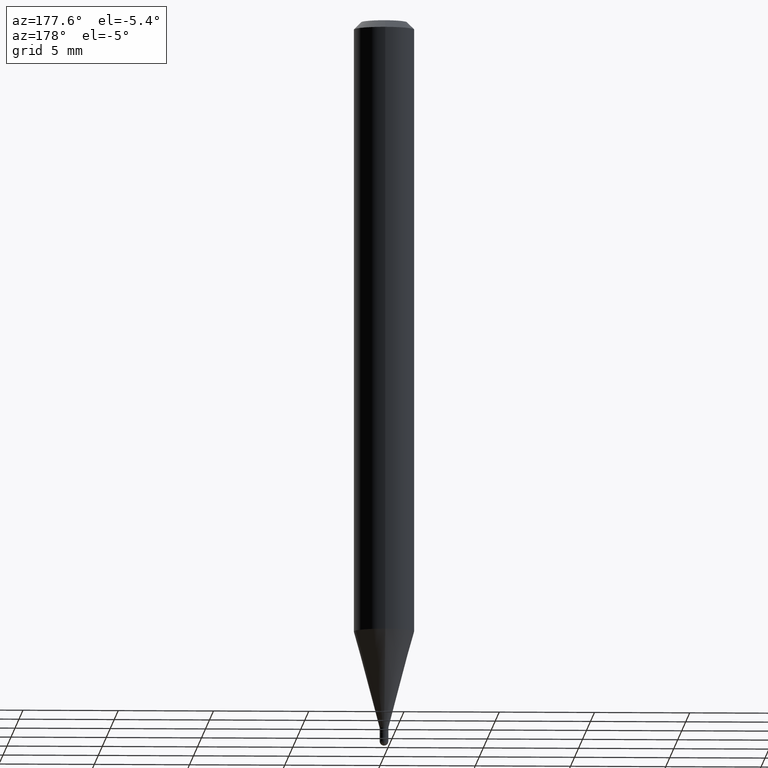
[diagram: clean part render]
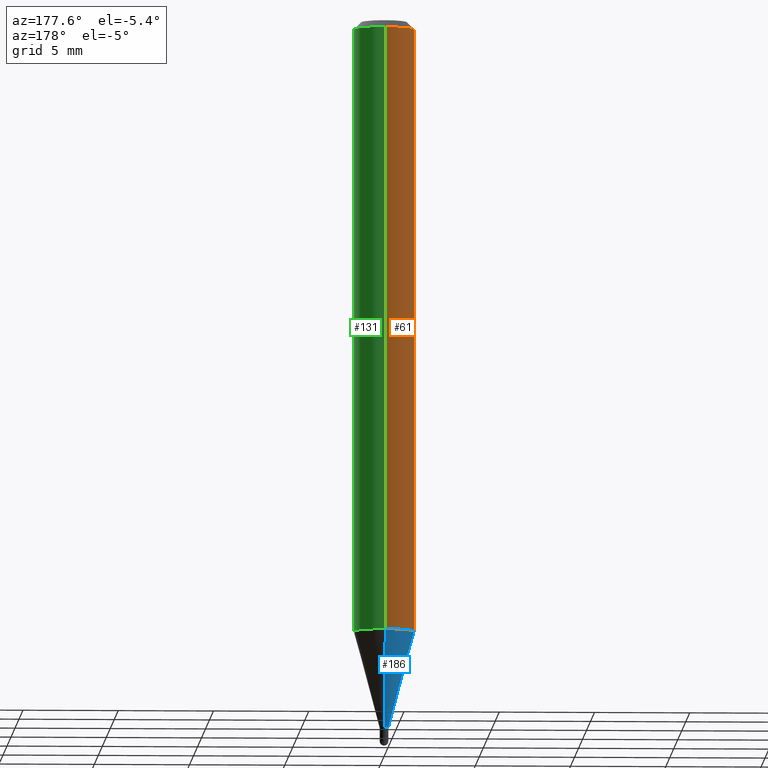
[diagram: same view with three faces highlighted in distinct colors, each labeled with its STEP entity id]
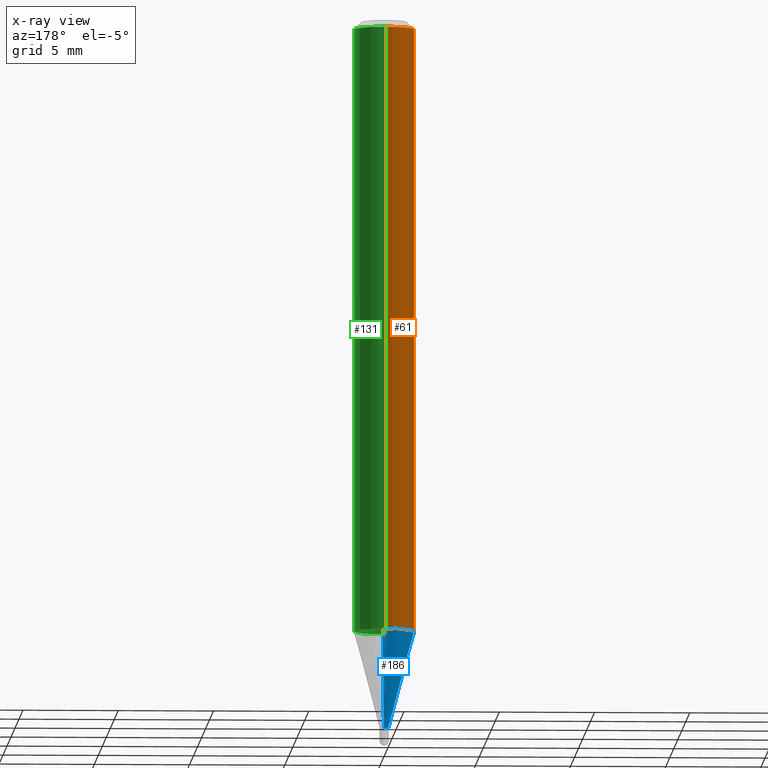
[diagram: x-ray of the same camera — body ghosted, the three highlighted faces saturated]
A machine part, auxiliary view with three faces highlighted in distinct colors.
The next image is the same camera in x-ray (body ghosted, the three faces saturated) — at least one of them is partly hidden behind the body in this view.
Their STEP definitions:

[orange] entity #61 — the highlighted cylindrical surface (edge-blend (fillet) strip) has radius 1.5875 mm, axis along (-0, 0, 1).
#4 = CARTESIAN_POINT ( 'NONE',  ( 4.440892098500932831E-16, 0.06249999999999556605, -1.263335281795065823 ) ) ;
#5 = VERTEX_POINT ( 'NONE', #224 ) ;
#21 = EDGE_CURVE ( 'NONE', #386, #207, #409, .T. ) ;
#36 = ORIENTED_EDGE ( 'NONE', *, *, #71, .T. ) ;
#61 = ADVANCED_FACE ( 'NONE', ( #336 ), #214, .T. ) ;
#64 = LINE ( 'NONE', #492, #373 ) ;
#71 = EDGE_CURVE ( 'NONE', #386, #5, #276, .T. ) ;
#75 = DIRECTION ( 'NONE',  ( -2.445465957590144447E-29, 3.491485418193306478E-15, 1.000000000000000000 ) ) ;
#88 = VERTEX_POINT ( 'NONE', #101 ) ;
#101 = CARTESIAN_POINT ( 'NONE',  ( -4.364351673553912750E-16, -0.06250000000000005551, -0.01499999999999954321 ) ) ;
#106 = CIRCLE ( 'NONE', #489, 0.06250000000000000000 ) ;
#127 = AXIS2_PLACEMENT_3D ( 'NONE', #334, #135, #293 ) ;
#129 = CARTESIAN_POINT ( 'NONE',  ( 3.668198936385158183E-31, -5.237228127289876172E-17, -0.01499999999999976179 ) ) ;
#130 = ORIENTED_EDGE ( 'NONE', *, *, #475, .T. ) ;
#135 = DIRECTION ( 'NONE',  ( -2.445465957590144447E-29, 3.491485418193306478E-15, 1.000000000000000000 ) ) ;
#173 = DIRECTION ( 'NONE',  ( -6.982962677686265922E-15, -1.000000000000000000, 4.370956789862821150E-15 ) ) ;
#174 = AXIS2_PLACEMENT_3D ( 'NONE', #300, #488, #173 ) ;
#207 = VERTEX_POINT ( 'NONE', #312 ) ;
#209 = VECTOR ( 'NONE', #222, 39.37007874015748143 ) ;
#214 = CYLINDRICAL_SURFACE ( 'NONE', #127, 0.06250000000000000000 ) ;
#222 = DIRECTION ( 'NONE',  ( -2.445465957590144447E-29, 3.491485418193306478E-15, 1.000000000000000000 ) ) ;
#224 = CARTESIAN_POINT ( 'NONE',  ( -4.364351673553608052E-16, -0.06250000000000441314, -1.263335281795065157 ) ) ;
#276 = CIRCLE ( 'NONE', #174, 0.06250000000000000000 ) ;
#293 = DIRECTION ( 'NONE',  ( -6.982962677686265922E-15, -1.000000000000000000, 3.491485418193306083E-15 ) ) ;
#300 = CARTESIAN_POINT ( 'NONE',  ( 3.089443424652384785E-29, -4.410916714676602621E-15, -1.263335281795065601 ) ) ;
#311 = ORIENTED_EDGE ( 'NONE', *, *, #21, .F. ) ;
#312 = CARTESIAN_POINT ( 'NONE',  ( 4.440892098500935790E-16, 0.06249999999999993755, -0.01499999999999997863 ) ) ;
#334 = CARTESIAN_POINT ( 'NONE',  ( 0.000000000000000000, 0.000000000000000000, 0.000000000000000000 ) ) ;
#336 = FACE_OUTER_BOUND ( 'NONE', #404, .T. ) ;
#373 = VECTOR ( 'NONE', #75, 39.37007874015748143 ) ;
#375 = EDGE_CURVE ( 'NONE', #207, #88, #106, .T. ) ;
#386 = VERTEX_POINT ( 'NONE', #4 ) ;
#401 = DIRECTION ( 'NONE',  ( -6.982962677686265922E-15, -1.000000000000000000, 3.483106191921935554E-15 ) ) ;
#404 = EDGE_LOOP ( 'NONE', ( #311, #36, #130, #440 ) ) ;
#409 = LINE ( 'NONE', #454, #209 ) ;
#438 = DIRECTION ( 'NONE',  ( -2.445465957590144447E-29, 3.491485418193306478E-15, 1.000000000000000000 ) ) ;
#440 = ORIENTED_EDGE ( 'NONE', *, *, #375, .F. ) ;
#454 = CARTESIAN_POINT ( 'NONE',  ( 4.440892098500625669E-16, 0.06250000000000000000, -2.182178386370816302E-16 ) ) ;
#475 = EDGE_CURVE ( 'NONE', #5, #88, #64, .T. ) ;
#488 = DIRECTION ( 'NONE',  ( -2.445465957590144447E-29, 3.491485418193306478E-15, 1.000000000000000000 ) ) ;
#489 = AXIS2_PLACEMENT_3D ( 'NONE', #129, #438, #401 ) ;
#492 = CARTESIAN_POINT ( 'NONE',  ( -4.364351673553916201E-16, -0.06250000000000000000, 2.182178386370816302E-16 ) ) ;

[blue] entity #186 — the highlighted conical surface has half-angle 15 deg.
#4 = CARTESIAN_POINT ( 'NONE',  ( 4.440892098500932831E-16, 0.06249999999999556605, -1.263335281795065823 ) ) ;
#5 = VERTEX_POINT ( 'NONE', #224 ) ;
#16 = CIRCLE ( 'NONE', #128, 0.008999999999999922992 ) ;
#32 = CONICAL_SURFACE ( 'NONE', #89, 0.008999999999999922992, 0.2617993877991502960 ) ;
#40 = CARTESIAN_POINT ( 'NONE',  ( 6.394884621844422714E-17, 0.008999999999994814232, -1.462999999999999856 ) ) ;
#44 = CARTESIAN_POINT ( 'NONE',  ( 3.577716695954381229E-29, -5.108043166816806907E-15, -1.462999999999999856 ) ) ;
#45 = ORIENTED_EDGE ( 'NONE', *, *, #161, .T. ) ;
#54 = ORIENTED_EDGE ( 'NONE', *, *, #359, .T. ) ;
#71 = EDGE_CURVE ( 'NONE', #386, #5, #276, .T. ) ;
#74 = DIRECTION ( 'NONE',  ( -2.445465957590144447E-29, 3.491485418193306478E-15, 1.000000000000000000 ) ) ;
#77 = DIRECTION ( 'NONE',  ( -2.445465957590144447E-29, 3.491485418193306478E-15, 1.000000000000000000 ) ) ;
#84 = CARTESIAN_POINT ( 'NONE',  ( -6.284666409914007187E-17, -0.009000000000005030018, -1.462999999999999856 ) ) ;
#89 = AXIS2_PLACEMENT_3D ( 'NONE', #305, #77, #187 ) ;
#93 = ORIENTED_EDGE ( 'NONE', *, *, #71, .F. ) ;
#113 = CARTESIAN_POINT ( 'NONE',  ( -6.284666409914007187E-17, -0.009000000000005030018, -1.462999999999999856 ) ) ;
#128 = AXIS2_PLACEMENT_3D ( 'NONE', #44, #74, #239 ) ;
#157 = CARTESIAN_POINT ( 'NONE',  ( 2.540190280342689277E-16, 0.008999999999994814232, -1.462999999999999856 ) ) ;
#161 = EDGE_CURVE ( 'NONE', #406, #275, #16, .T. ) ;
#173 = DIRECTION ( 'NONE',  ( -6.982962677686265922E-15, -1.000000000000000000, 4.370956789862821150E-15 ) ) ;
#174 = AXIS2_PLACEMENT_3D ( 'NONE', #300, #488, #173 ) ;
#176 = VECTOR ( 'NONE', #321, 39.37007874015748143 ) ;
#186 = ADVANCED_FACE ( 'NONE', ( #266 ), #32, .T. ) ;
#187 = DIRECTION ( 'NONE',  ( -6.982962677686265922E-15, -1.000000000000000000, 0.000000000000000000 ) ) ;
#224 = CARTESIAN_POINT ( 'NONE',  ( -4.364351673553608052E-16, -0.06250000000000441314, -1.263335281795065157 ) ) ;
#232 = EDGE_CURVE ( 'NONE', #406, #386, #501, .T. ) ;
#239 = DIRECTION ( 'NONE',  ( -6.982962677686265922E-15, -1.000000000000000000, 0.000000000000000000 ) ) ;
#266 = FACE_OUTER_BOUND ( 'NONE', #507, .T. ) ;
#275 = VERTEX_POINT ( 'NONE', #113 ) ;
#276 = CIRCLE ( 'NONE', #174, 0.06250000000000000000 ) ;
#295 = VECTOR ( 'NONE', #420, 39.37007874015748143 ) ;
#300 = CARTESIAN_POINT ( 'NONE',  ( 3.089443424652384785E-29, -4.410916714676602621E-15, -1.263335281795065601 ) ) ;
#305 = CARTESIAN_POINT ( 'NONE',  ( 3.577716695954381229E-29, -5.108043166816806907E-15, -1.462999999999999856 ) ) ;
#321 = DIRECTION ( 'NONE',  ( -1.807323732225330928E-15, -0.2588190451025182970, 0.9659258262890689783 ) ) ;
#324 = LINE ( 'NONE', #84, #176 ) ;
#359 = EDGE_CURVE ( 'NONE', #275, #5, #324, .T. ) ;
#386 = VERTEX_POINT ( 'NONE', #4 ) ;
#406 = VERTEX_POINT ( 'NONE', #157 ) ;
#420 = DIRECTION ( 'NONE',  ( 1.839019923739601104E-15, 0.2588190451025250693, 0.9659258262890670910 ) ) ;
#431 = ORIENTED_EDGE ( 'NONE', *, *, #232, .F. ) ;
#488 = DIRECTION ( 'NONE',  ( -2.445465957590144447E-29, 3.491485418193306478E-15, 1.000000000000000000 ) ) ;
#501 = LINE ( 'NONE', #40, #295 ) ;
#507 = EDGE_LOOP ( 'NONE', ( #431, #45, #54, #93 ) ) ;

[green] entity #131 — the highlighted cylindrical surface (edge-blend (fillet) strip) has radius 1.5875 mm, axis along (-0, 0, 1).
#4 = CARTESIAN_POINT ( 'NONE',  ( 4.440892098500932831E-16, 0.06249999999999556605, -1.263335281795065823 ) ) ;
#5 = VERTEX_POINT ( 'NONE', #224 ) ;
#21 = EDGE_CURVE ( 'NONE', #386, #207, #409, .T. ) ;
#22 = DIRECTION ( 'NONE',  ( -2.445465957590144447E-29, 3.491485418193306478E-15, 1.000000000000000000 ) ) ;
#24 = AXIS2_PLACEMENT_3D ( 'NONE', #303, #22, #141 ) ;
#38 = EDGE_CURVE ( 'NONE', #5, #386, #337, .T. ) ;
#42 = EDGE_LOOP ( 'NONE', ( #487, #327, #195, #288 ) ) ;
#64 = LINE ( 'NONE', #492, #373 ) ;
#75 = DIRECTION ( 'NONE',  ( -2.445465957590144447E-29, 3.491485418193306478E-15, 1.000000000000000000 ) ) ;
#88 = VERTEX_POINT ( 'NONE', #101 ) ;
#101 = CARTESIAN_POINT ( 'NONE',  ( -4.364351673553912750E-16, -0.06250000000000005551, -0.01499999999999954321 ) ) ;
#109 = FACE_OUTER_BOUND ( 'NONE', #42, .T. ) ;
#123 = DIRECTION ( 'NONE',  ( -2.445465957590144447E-29, 3.491485418193306478E-15, 1.000000000000000000 ) ) ;
#131 = ADVANCED_FACE ( 'NONE', ( #109 ), #493, .T. ) ;
#141 = DIRECTION ( 'NONE',  ( -6.982962677686265922E-15, -1.000000000000000000, 4.370956789862821150E-15 ) ) ;
#195 = ORIENTED_EDGE ( 'NONE', *, *, #421, .F. ) ;
#207 = VERTEX_POINT ( 'NONE', #312 ) ;
#209 = VECTOR ( 'NONE', #222, 39.37007874015748143 ) ;
#222 = DIRECTION ( 'NONE',  ( -2.445465957590144447E-29, 3.491485418193306478E-15, 1.000000000000000000 ) ) ;
#224 = CARTESIAN_POINT ( 'NONE',  ( -4.364351673553608052E-16, -0.06250000000000441314, -1.263335281795065157 ) ) ;
#286 = DIRECTION ( 'NONE',  ( -6.982962677686265922E-15, -1.000000000000000000, 3.483106191921935554E-15 ) ) ;
#288 = ORIENTED_EDGE ( 'NONE', *, *, #475, .F. ) ;
#303 = CARTESIAN_POINT ( 'NONE',  ( 3.089443424652384785E-29, -4.410916714676602621E-15, -1.263335281795065601 ) ) ;
#312 = CARTESIAN_POINT ( 'NONE',  ( 4.440892098500935790E-16, 0.06249999999999993755, -0.01499999999999997863 ) ) ;
#327 = ORIENTED_EDGE ( 'NONE', *, *, #21, .T. ) ;
#337 = CIRCLE ( 'NONE', #24, 0.06250000000000000000 ) ;
#366 = AXIS2_PLACEMENT_3D ( 'NONE', #396, #123, #286 ) ;
#370 = CARTESIAN_POINT ( 'NONE',  ( 0.000000000000000000, 0.000000000000000000, 0.000000000000000000 ) ) ;
#373 = VECTOR ( 'NONE', #75, 39.37007874015748143 ) ;
#386 = VERTEX_POINT ( 'NONE', #4 ) ;
#396 = CARTESIAN_POINT ( 'NONE',  ( 3.668198936385158183E-31, -5.237228127289876172E-17, -0.01499999999999976179 ) ) ;
#409 = LINE ( 'NONE', #454, #209 ) ;
#421 = EDGE_CURVE ( 'NONE', #88, #207, #497, .T. ) ;
#453 = DIRECTION ( 'NONE',  ( -2.445465957590144447E-29, 3.491485418193306478E-15, 1.000000000000000000 ) ) ;
#454 = CARTESIAN_POINT ( 'NONE',  ( 4.440892098500625669E-16, 0.06250000000000000000, -2.182178386370816302E-16 ) ) ;
#475 = EDGE_CURVE ( 'NONE', #5, #88, #64, .T. ) ;
#482 = AXIS2_PLACEMENT_3D ( 'NONE', #370, #453, #498 ) ;
#487 = ORIENTED_EDGE ( 'NONE', *, *, #38, .T. ) ;
#492 = CARTESIAN_POINT ( 'NONE',  ( -4.364351673553916201E-16, -0.06250000000000000000, 2.182178386370816302E-16 ) ) ;
#493 = CYLINDRICAL_SURFACE ( 'NONE', #482, 0.06250000000000000000 ) ;
#497 = CIRCLE ( 'NONE', #366, 0.06250000000000000000 ) ;
#498 = DIRECTION ( 'NONE',  ( -6.982962677686265922E-15, -1.000000000000000000, 3.491485418193306083E-15 ) ) ;